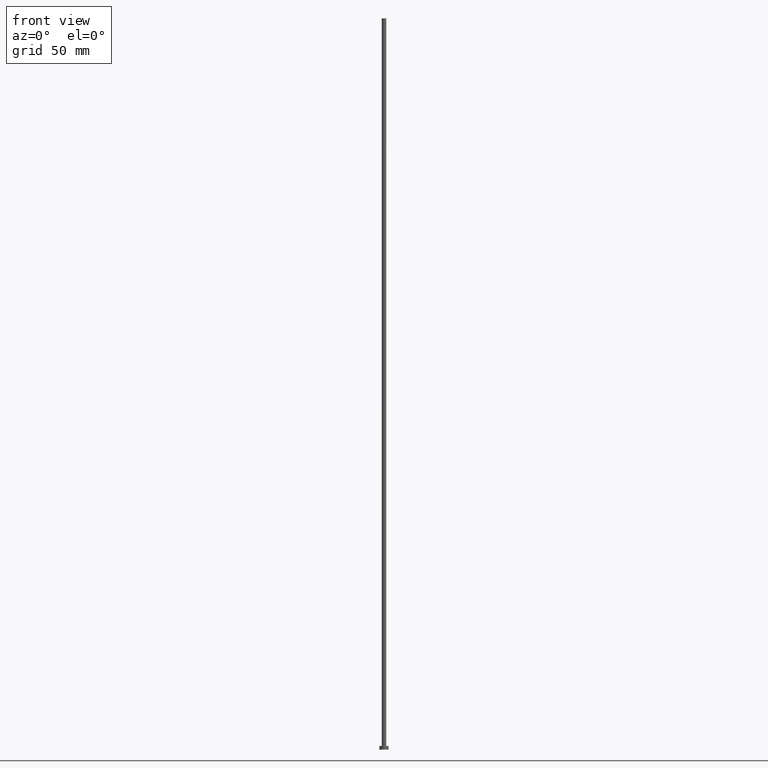
[diagram: clean part render]
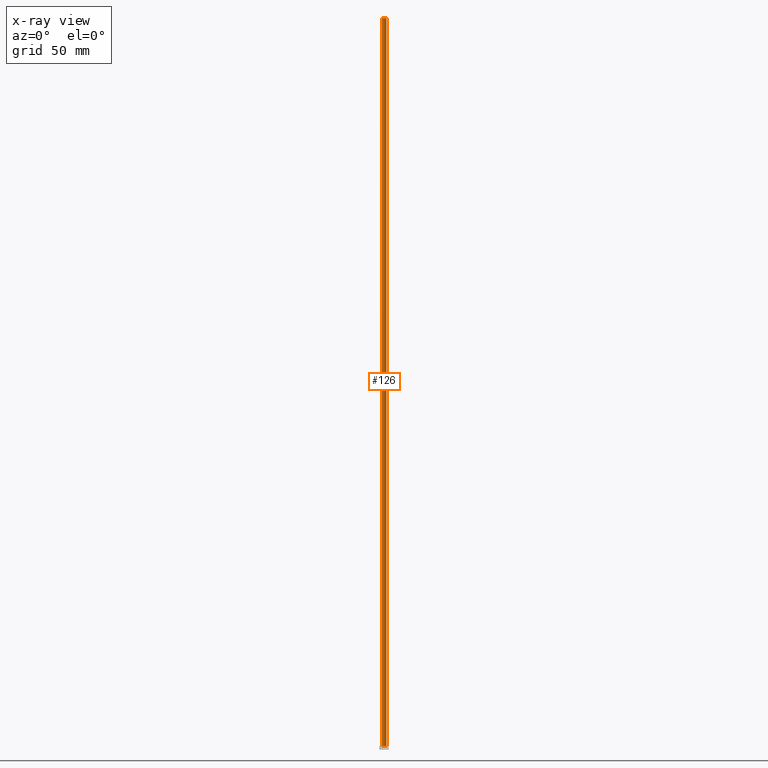
[diagram: x-ray — body ghosted, one internal face saturated and labeled with its STEP entity id]
A machine part, front view, then the same camera in x-ray: the body is ghosted and one INTERNAL B-rep face — a face not visible from any outside direction — is saturated and labeled: STEP entity #126.
In plain terms, the highlighted cylindrical surface (edge-blend (fillet) strip) has radius 1.25 mm, axis along (-0, -0, -1).
Its self-contained STEP definition (entity closure, byte-faithful):
#3 = DIRECTION ( 'NONE',  ( -1.000000000000000000, 0.000000000000000000, 0.000000000000000000 ) ) ;
#8 = CARTESIAN_POINT ( 'NONE',  ( 1.250000000000000000, 1.530808498934191571E-16, 400.0000000000000000 ) ) ;
#13 = EDGE_CURVE ( 'NONE', #66, #74, #251, .T. ) ;
#24 = CARTESIAN_POINT ( 'NONE',  ( 0.000000000000000000, 0.000000000000000000, 2.000000000000000000 ) ) ;
#28 = ORIENTED_EDGE ( 'NONE', *, *, #255, .T. ) ;
#45 = AXIS2_PLACEMENT_3D ( 'NONE', #209, #156, #3 ) ;
#51 = CARTESIAN_POINT ( 'NONE',  ( 1.250000000000000000, 1.530808498934191571E-16, 2.000000000000000000 ) ) ;
#63 = AXIS2_PLACEMENT_3D ( 'NONE', #24, #131, #214 ) ;
#66 = VERTEX_POINT ( 'NONE', #123 ) ;
#68 = LINE ( 'NONE', #8, #124 ) ;
#74 = VERTEX_POINT ( 'NONE', #102 ) ;
#75 = AXIS2_PLACEMENT_3D ( 'NONE', #121, #249, #99 ) ;
#97 = VERTEX_POINT ( 'NONE', #250 ) ;
#99 = DIRECTION ( 'NONE',  ( 1.000000000000000000, 0.000000000000000000, 0.000000000000000000 ) ) ;
#101 = EDGE_CURVE ( 'NONE', #74, #97, #106, .T. ) ;
#102 = CARTESIAN_POINT ( 'NONE',  ( -1.250000000000000000, 0.000000000000000000, 400.0000000000000000 ) ) ;
#106 = LINE ( 'NONE', #127, #150 ) ;
#108 = FACE_OUTER_BOUND ( 'NONE', #247, .T. ) ;
#121 = CARTESIAN_POINT ( 'NONE',  ( 0.000000000000000000, 0.000000000000000000, 400.0000000000000000 ) ) ;
#123 = CARTESIAN_POINT ( 'NONE',  ( 1.250000000000000000, 1.530808498934191571E-16, 400.0000000000000000 ) ) ;
#124 = VECTOR ( 'NONE', #240, 1000.000000000000000 ) ;
#126 = ADVANCED_FACE ( 'NONE', ( #108 ), #254, .T. ) ;
#127 = CARTESIAN_POINT ( 'NONE',  ( -1.250000000000000000, 0.000000000000000000, 400.0000000000000000 ) ) ;
#131 = DIRECTION ( 'NONE',  ( 0.000000000000000000, 0.000000000000000000, 1.000000000000000000 ) ) ;
#137 = ORIENTED_EDGE ( 'NONE', *, *, #101, .F. ) ;
#150 = VECTOR ( 'NONE', #190, 1000.000000000000000 ) ;
#156 = DIRECTION ( 'NONE',  ( -0.000000000000000000, -0.000000000000000000, -1.000000000000000000 ) ) ;
#165 = EDGE_CURVE ( 'NONE', #66, #223, #68, .T. ) ;
#176 = ORIENTED_EDGE ( 'NONE', *, *, #13, .F. ) ;
#190 = DIRECTION ( 'NONE',  ( -0.000000000000000000, -0.000000000000000000, -1.000000000000000000 ) ) ;
#203 = ORIENTED_EDGE ( 'NONE', *, *, #165, .T. ) ;
#209 = CARTESIAN_POINT ( 'NONE',  ( 0.000000000000000000, 0.000000000000000000, 400.0000000000000000 ) ) ;
#214 = DIRECTION ( 'NONE',  ( 1.000000000000000000, 0.000000000000000000, 0.000000000000000000 ) ) ;
#222 = CIRCLE ( 'NONE', #63, 1.250000000000000000 ) ;
#223 = VERTEX_POINT ( 'NONE', #51 ) ;
#240 = DIRECTION ( 'NONE',  ( -0.000000000000000000, -0.000000000000000000, -1.000000000000000000 ) ) ;
#247 = EDGE_LOOP ( 'NONE', ( #176, #203, #28, #137 ) ) ;
#249 = DIRECTION ( 'NONE',  ( 0.000000000000000000, 0.000000000000000000, 1.000000000000000000 ) ) ;
#250 = CARTESIAN_POINT ( 'NONE',  ( -1.250000000000000000, 0.000000000000000000, 2.000000000000000000 ) ) ;
#251 = CIRCLE ( 'NONE', #75, 1.250000000000000000 ) ;
#254 = CYLINDRICAL_SURFACE ( 'NONE', #45, 1.250000000000000000 ) ;
#255 = EDGE_CURVE ( 'NONE', #223, #97, #222, .T. ) ;